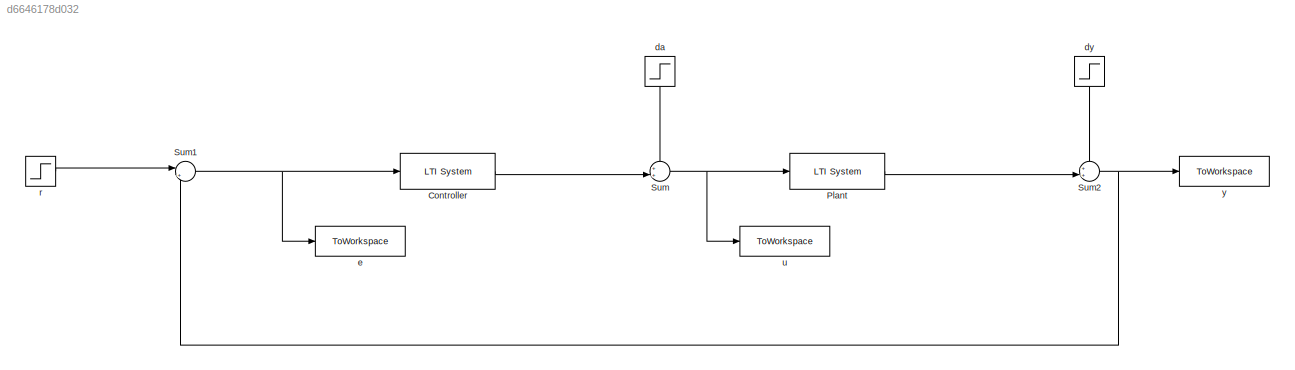
MODEL slx_d6646178d032
KIND model
CONFIG AbsTol = auto
CONFIG EnableMultiTasking = off
CONFIG FixedStep = auto
CONFIG MaxStep = auto
CONFIG MinStep = auto
CONFIG RelTol = 1e-3
CONFIG SampleTimeConstraint = Unconstrained
CONFIG SolverName = VariableStepAuto
CONFIG StartTime = 0.0
CONFIG StopTime = stop_time
BLOCK [Reference] Controller  REF=cstblocks/LTI System
  SourceBlock = cstblocks/LTI System
  SourceType = LTI Block
BLOCK [Reference] Plant  REF=cstblocks/LTI System
  SourceBlock = cstblocks/LTI System
  SourceType = LTI Block
BLOCK [Sum] Sum
  Inputs = ++|
BLOCK [Sum] Sum1
  Inputs = |+-
BLOCK [Sum] Sum2
  Inputs = ++|
BLOCK [Step] da
  After = da
  NameLocation = left
  SampleTime = 0
  Time = 0
BLOCK [Step] dy
  After = dy
  NameLocation = left
  SampleTime = 0
  Time = 0
BLOCK [ToWorkspace] e
  FixptAsFi = on
  MaxDataPoints = inf
  SampleTime = -1
  SaveFormat = Timeseries
  VariableName = e
BLOCK [Step] r
  After = r
  SampleTime = 0
  Time = 0
BLOCK [ToWorkspace] u
  FixptAsFi = on
  MaxDataPoints = inf
  SampleTime = -1
  SaveFormat = Timeseries
  VariableName = u
BLOCK [ToWorkspace] y
  FixptAsFi = on
  MaxDataPoints = inf
  SampleTime = -1
  SaveFormat = Timeseries
  VariableName = y
LINE Controller:1 -> Sum:2
LINE Plant:1 -> Sum2:2
NET Sum1:1 -> Controller:1, e:1
NET Sum2:1 -> Sum1:2, y:1
NET Sum:1 -> Plant:1, u:1
LINE da:1 -> Sum:1
LINE dy:1 -> Sum2:1
LINE r:1 -> Sum1:1
note: NET lines group one-source signal fan-out (src -> all destinations, sorted); 1:1 wires keep LINE
